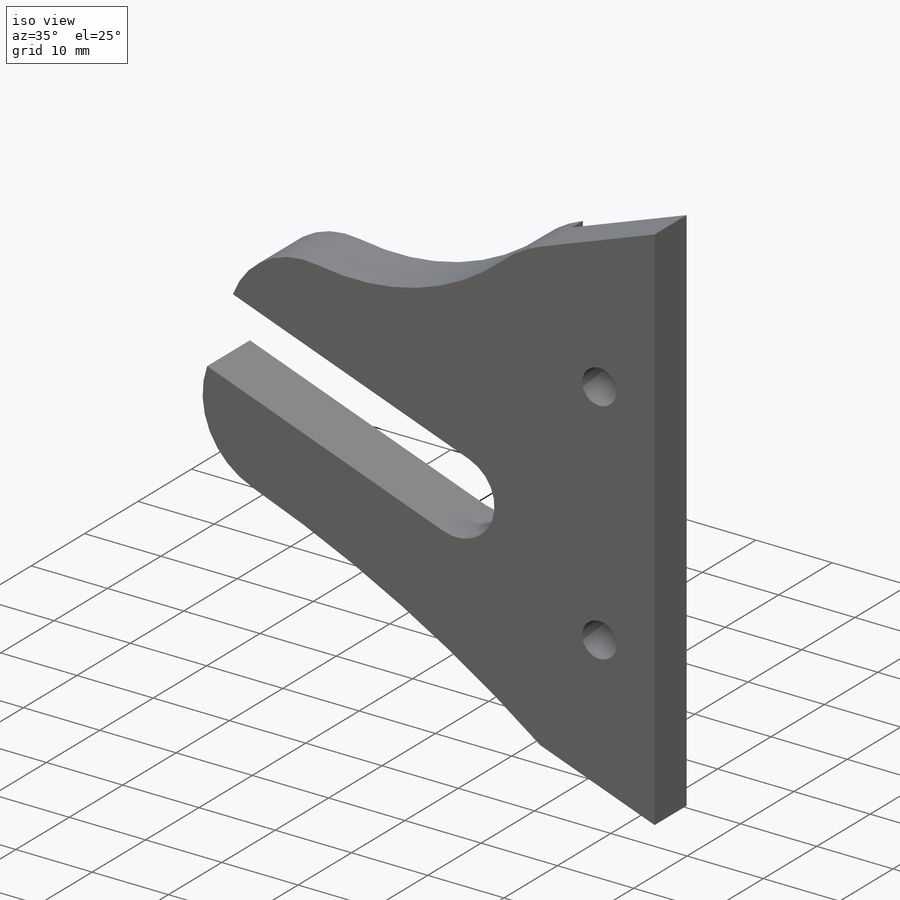
[diagram: iso view]
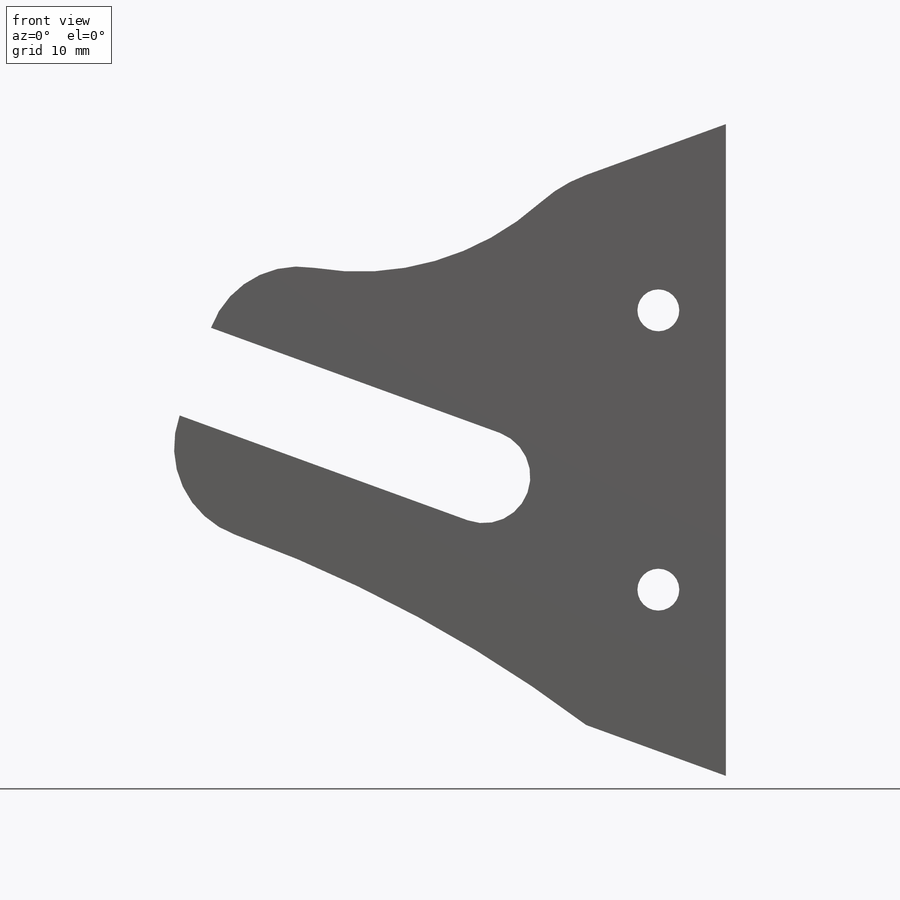
[diagram: front view]
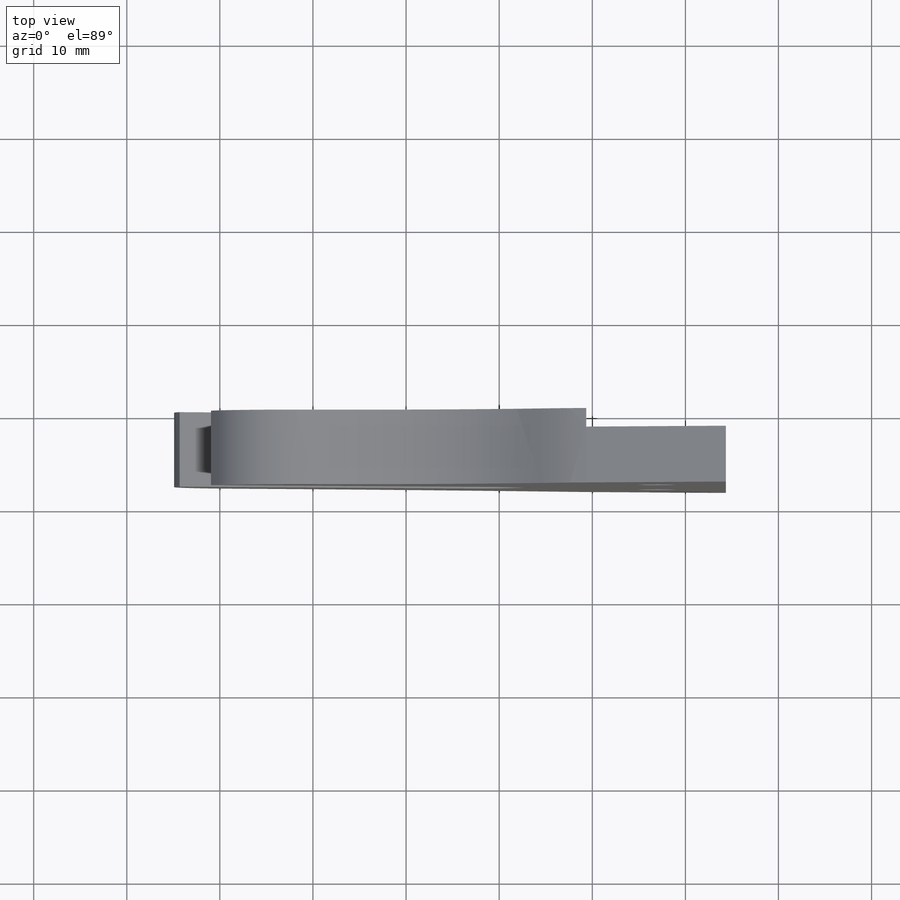
[diagram: top view]
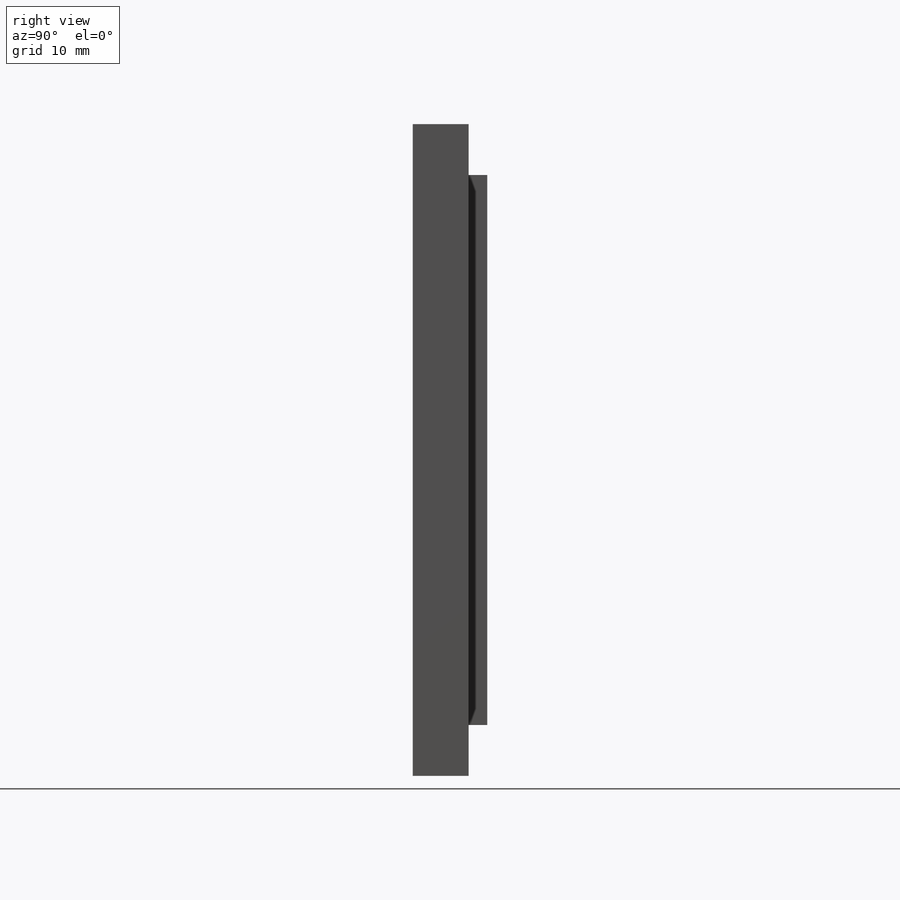
[diagram: right view]
SOLIDWORKS PART (.sldprt)
format: sldprt  version: not decoded by parser v0  size: 157,184 bytes
history: native  units: mm
features: plane x3, sketch x3, cut_extrude x2, material x1, extrude x1 (+11 scaffold rows collapsed)
feature tree (21):
  scaffold x11  (default folders/planes/origin — collapsed)
  material  "Matériau <non spécifié>"
  plane  "Plan de face"
  plane  "Plan de dessus"
  plane  "Plan de droite"
  sketch  "Esquisse1"  dims[c1.D8=5.0mm c1.D10=10.0mm c1.D12=10.0mm c1.D9=10.0mm c2.D10=15.0mm c2.D11=15.0mm c2.D1=~65.310031mm c3.D1=70.0deg c3.D2=70.0mm c3.D3=70.0mm c4.D3=70.0deg c4.D4=42.0mm c4.D5=10.0mm c4.D6=26.0mm c4.D7=15.0mm c4.D8=33.0mm c4.D9=33.0mm c4.D10=10.0mm c4.D11=10.0mm c4.D13=~15.962667mm c5.D13=70.0deg c5.D14=~15.962667mm c6.D13=15.0mm c7.D13=70.0deg c7.D4=42.0mm]
  extrude  "Extrusion1"  Depth=8mm
  sketch  "Esquisse5"  dims[D1=15.0mm]
  cut_extrude  "Extrusion3"  Depth=2mm
  sketch  "Esquisse6"  dims[D1=4.5mm D2=4.5mm D3=7.75mm D4=7.75mm D5=20.0mm D6=30.0mm]
  cut_extrude  "Extrusion4"  [1 undecoded]
decode coverage: 5 of 6 modeling features carry decoded parameters
note: ~ marks probable driven/reference dimensions
note: 1 parameter value undecoded
note: suppression state not decoded; provenance and decode notes live in map.json
